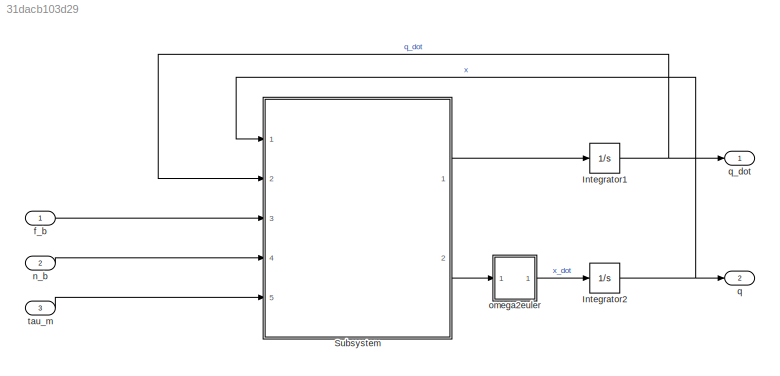
MODEL slx_31dacb103d29
KIND model
CONFIG AbsTol = auto
CONFIG EnableMultiTasking = off
CONFIG FixedStep = auto
CONFIG MaxStep = auto
CONFIG MinStep = auto
CONFIG RelTol = 1e-3
CONFIG SampleTimeConstraint = Unconstrained
CONFIG SolverName = VariableStepAuto
CONFIG StartTime = 0.0
CONFIG StopTime = 10.0
BLOCK [Integrator] Integrator1
  InitialCondition = q_dot_0
  Ports = [1, 1]
BLOCK [Integrator] Integrator2
  Ports = [1, 1]
BLOCK [SubSystem] Subsystem
  Ports = [5, 2]
  ReferencedSubsystem = ForwardDyn
  RequestExecContextInheritance = off
BLOCK [Inport] f_b
BLOCK [Inport] n_b
  Port = 2
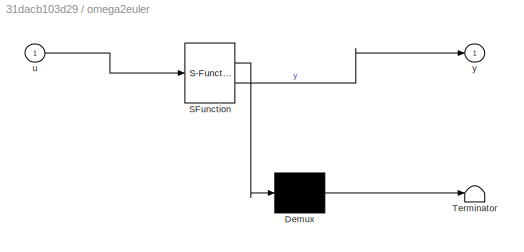
BLOCK [SubSystem] omega2euler
  ErrorFcn = Stateflow.Translate.translate
  PermitHierarchicalResolution = ExplicitOnly
  Ports = [1, 1]
  RequestExecContextInheritance = off
  SFBlockType = MATLAB Function
  TreatAsAtomicUnit = on
BLOCK [Demux] omega2euler/ Demux 
  Outputs = 1
  Ports = [1, 1]
BLOCK [S-Function] omega2euler/ SFunction 
  EnableBusSupport = off
  FunctionName = sf_sfun
  PortCounts = [1 2]
  Ports = [1, 2]
  SFcnIsStateOwnerBlock = off
  SFunctionDeploymentMode = off
  Tag = Stateflow S-Function 2
BLOCK [Terminator] omega2euler/ Terminator 
BLOCK [Inport] omega2euler/u
BLOCK [Outport] omega2euler/y
BLOCK [Outport] q
  Port = 2
BLOCK [Outport] q_dot
BLOCK [Inport] tau_m
  Port = 3
NET Integrator1:1 -> Subsystem:2, q_dot:1
NET Integrator2:1 -> Subsystem:1, q:1
LINE Subsystem:1 -> Integrator1:1
LINE Subsystem:2 -> omega2euler:1
LINE f_b:1 -> Subsystem:3
LINE n_b:1 -> Subsystem:4
LINE omega2euler:1 -> Integrator2:1
LINE tau_m:1 -> Subsystem:5
note: NET lines group one-source signal fan-out (src -> all destinations, sorted); 1:1 wires keep LINE
CHART omega2euler states=1 transitions=1
  STATE_LABEL 'eML_blk_kernel()'
  STATE_LABEL 'SCRIPT:\nfunction y = fcn(u)\n\ny = u;\n'
CHART  states=0 transitions=0
